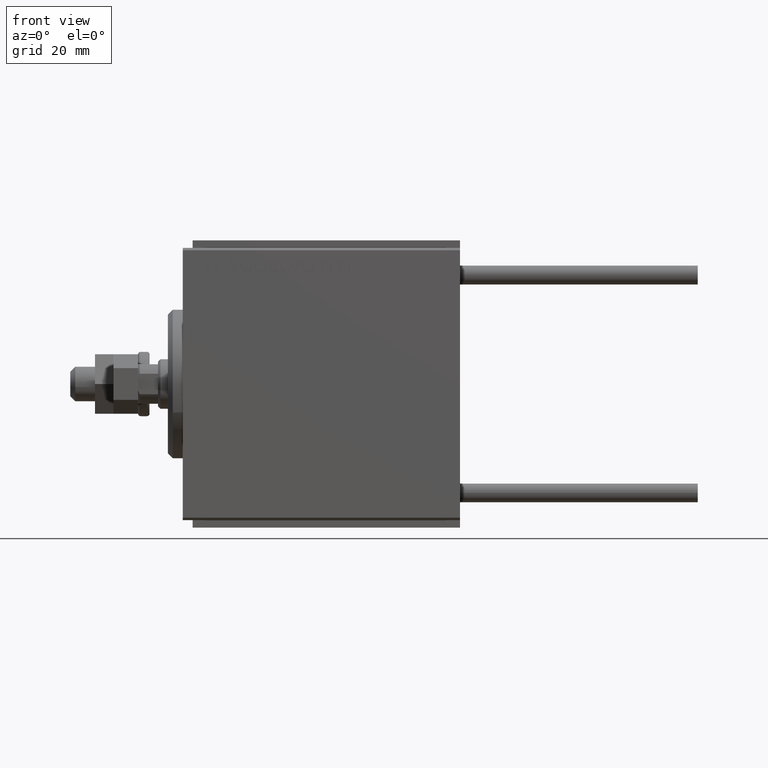
[diagram: clean part render]
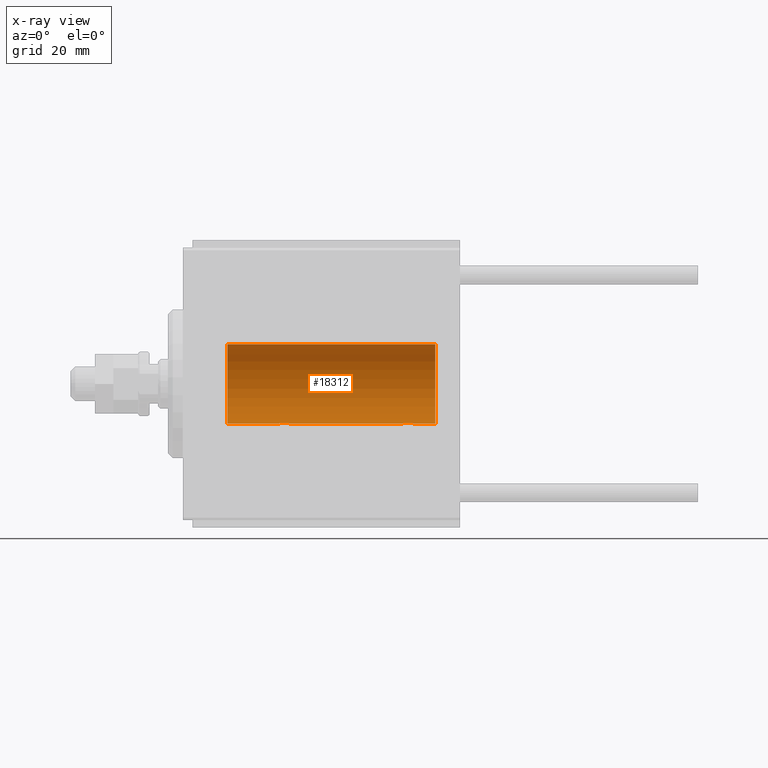
[diagram: x-ray — body ghosted, one internal face saturated and labeled with its STEP entity id]
A machine part, front view, then the same camera in x-ray: the body is ghosted and one INTERNAL B-rep face — a face not visible from any outside direction — is saturated and labeled: STEP entity #18312.
In plain terms, the highlighted cylindrical surface (partial cylindrical patch) has radius 8 mm, axis along (-1, -0, -0).
Its self-contained STEP definition (entity closure, byte-faithful):
#118 = CARTESIAN_POINT ( 'NONE',  ( 46.50031982237067751, 0.7674545364220052290, -7.963965305651049320 ) ) ;
#1081 = CARTESIAN_POINT ( 'NONE',  ( 9.000000000000001776, 9.797174393178823685E-16, -7.999999999999998224 ) ) ;
#1284 = CARTESIAN_POINT ( 'NONE',  ( 21.26739091610630084, 1.000368629246204399, -7.938072339095202601 ) ) ;
#1529 = CARTESIAN_POINT ( 'NONE',  ( 21.50031982237068107, 0.7674545364220053401, -7.963965305651049320 ) ) ;
#1737 = CARTESIAN_POINT ( 'NONE',  ( 51.00000000000000000, 0.000000000000000000, 7.999999999999998224 ) ) ;
#1812 = CARTESIAN_POINT ( 'NONE',  ( 51.00000000000000000, 9.797174393178823685E-16, -7.999999999999998224 ) ) ;
#2281 = CARTESIAN_POINT ( 'NONE',  ( 21.68608944587722576, 0.4029817482954558550, -7.990203133273719338 ) ) ;
#3715 = CARTESIAN_POINT ( 'NONE',  ( 46.74999999999999289, 9.797173987957720246E-16, -7.999999999999998224 ) ) ;
#3963 = CARTESIAN_POINT ( 'NONE',  ( 45.82459038316879685, 1.209888574283866980, -7.907997942808293601 ) ) ;
#4633 = LINE ( 'NONE', #31865, #8980 ) ;
#4885 = CARTESIAN_POINT ( 'NONE',  ( 19.28266791658456825, 0.3277916934117463543, -7.994719249713585718 ) ) ;
#5119 = CARTESIAN_POINT ( 'NONE',  ( 21.70976650520091411, 0.3250523954932730830, -7.993796610540221614 ) ) ;
#5219 = ORIENTED_EDGE ( 'NONE', *, *, #5967, .T. ) ;
#5615 = CARTESIAN_POINT ( 'NONE',  ( 21.74181525892405986, 0.1645871186493928773, -7.998709545350109806 ) ) ;
#5863 = CARTESIAN_POINT ( 'NONE',  ( 20.17150130922778573, 1.217000984963200860, -7.907141142849008375 ) ) ;
#5967 = EDGE_CURVE ( 'NONE', #32391, #36948, #31352, .T. ) ;
#6123 = CARTESIAN_POINT ( 'NONE',  ( 21.75000000000000000, 0.08164616652084619175, -7.999999999999998224 ) ) ;
#6717 = ORIENTED_EDGE ( 'NONE', *, *, #31863, .T. ) ;
#7483 = CARTESIAN_POINT ( 'NONE',  ( 21.75000000000000355, 9.797173987965608855E-16, -7.999999999999998224 ) ) ;
#7792 = CARTESIAN_POINT ( 'NONE',  ( 46.75000000000000000, 0.08164616652084634441, -8.000000000000000000 ) ) ;
#8295 = CARTESIAN_POINT ( 'NONE',  ( 46.59204967621045057, 0.6298709050361936956, -7.976604806854522778 ) ) ;
#8560 = ORIENTED_EDGE ( 'NONE', *, *, #27305, .F. ) ;
#8726 = EDGE_CURVE ( 'NONE', #19715, #44937, #14740, .T. ) ;
#8813 = DIRECTION ( 'NONE',  ( 0.000000000000000000, 0.000000000000000000, 1.000000000000000000 ) ) ;
#8958 = CARTESIAN_POINT ( 'NONE',  ( 19.73146701955095494, 0.9991832710565806686, -7.938201675418735448 ) ) ;
#8980 = VECTOR ( 'NONE', #43348, 1000.000000000000000 ) ;
#9118 = ORIENTED_EDGE ( 'NONE', *, *, #49002, .F. ) ;
#10205 = CARTESIAN_POINT ( 'NONE',  ( 20.66417091690312091, 1.241868426634441747, -7.903038949453011774 ) ) ;
#10466 = CIRCLE ( 'NONE', #20996, 7.999999999999998224 ) ;
#11184 = VERTEX_POINT ( 'NONE', #38275 ) ;
#11321 = CARTESIAN_POINT ( 'NONE',  ( 51.00000000000000000, 9.797174393178823685E-16, -7.999999999999998224 ) ) ;
#11363 = ORIENTED_EDGE ( 'NONE', *, *, #49020, .F. ) ;
#11606 = CARTESIAN_POINT ( 'NONE',  ( 46.12982270639373183, 1.092113850918999818, -7.925358570881163800 ) ) ;
#12363 = CARTESIAN_POINT ( 'NONE',  ( 46.74181525892407052, 0.1645871186493928495, -7.998709545350109806 ) ) ;
#12510 = EDGE_CURVE ( 'NONE', #11184, #13837, #48283, .T. ) ;
#13011 = CARTESIAN_POINT ( 'NONE',  ( 21.75000000000000355, 9.797173987965608855E-16, -7.999999999999998224 ) ) ;
#13510 = CARTESIAN_POINT ( 'NONE',  ( 20.58119849493555620, 1.250030652953401988, -7.901735465557267801 ) ) ;
#13837 = VERTEX_POINT ( 'NONE', #1081 ) ;
#14740 = B_SPLINE_CURVE_WITH_KNOTS ( 'NONE', 3,
 ( #34523, #27135, #31464, #46483, #16191, #35278, #23074, #31201, #35023, #23326, #42675, #3963, #27644, #11606, #31713, #118, #8295, #38600, #46737, #12363, #7792, #3715 ),
 .UNSPECIFIED., .F., .F.,
 ( 4, 2, 2, 2, 2, 2, 2, 2, 2, 2, 4 ),
 ( 7.505074081152076538E-19, 0.0004892585179630999388, 0.0009785170359261990101, 0.001467775553889298082, 0.001957034071852397587, 0.002201663330833957422, 0.002446292589815517258, 0.002935551107778656445, 0.003424809625741795632, 0.003669438884723368911, 0.003914068143704942625 ),
 .UNSPECIFIED. ) ;
#15074 = VECTOR ( 'NONE', #19359, 1000.000000000000000 ) ;
#15329 = CARTESIAN_POINT ( 'NONE',  ( 51.00000000000000000, 0.000000000000000000, 0.000000000000000000 ) ) ;
#16191 = CARTESIAN_POINT ( 'NONE',  ( 44.50115498801908842, 0.7689725568822843860, -7.963798983873343396 ) ) ;
#17262 = DIRECTION ( 'NONE',  ( 0.000000000000000000, 0.000000000000000000, 1.000000000000000000 ) ) ;
#18035 = VERTEX_POINT ( 'NONE', #11321 ) ;
#18312 = ADVANCED_FACE ( 'NONE', ( #34673 ), #38245, .F. ) ;
#18649 = DIRECTION ( 'NONE',  ( -1.000000000000000000, -0.000000000000000000, -0.000000000000000000 ) ) ;
#18849 = DIRECTION ( 'NONE',  ( -1.000000000000000000, -0.000000000000000000, -0.000000000000000000 ) ) ;
#19039 = CARTESIAN_POINT ( 'NONE',  ( 19.25000000000000711, -6.253246997522681077E-15, -7.999999999999998224 ) ) ;
#19359 = DIRECTION ( 'NONE',  ( -1.000000000000000000, -0.000000000000000000, -0.000000000000000000 ) ) ;
#19715 = VERTEX_POINT ( 'NONE', #25403 ) ;
#20618 = EDGE_LOOP ( 'NONE', ( #11363, #8560, #6717, #27953, #9118, #5219, #21463, #46830 ) ) ;
#20996 = AXIS2_PLACEMENT_3D ( 'NONE', #32530, #36853, #17262 ) ;
#21463 = ORIENTED_EDGE ( 'NONE', *, *, #44545, .F. ) ;
#21479 = AXIS2_PLACEMENT_3D ( 'NONE', #40110, #27662, #8813 ) ;
#22923 = CARTESIAN_POINT ( 'NONE',  ( 51.00000000000000000, 9.797174393178823685E-16, -7.999999999999998224 ) ) ;
#23074 = CARTESIAN_POINT ( 'NONE',  ( 44.87074834296262082, 1.092266057037466265, -7.925334523600929160 ) ) ;
#23326 = CARTESIAN_POINT ( 'NONE',  ( 45.58119849493557751, 1.250030652953401322, -7.901735465557271354 ) ) ;
#23850 = VECTOR ( 'NONE', #45119, 1000.000000000000000 ) ;
#25403 = CARTESIAN_POINT ( 'NONE',  ( 44.25000000000000711, -6.574401834785964054E-15, -7.999999999999998224 ) ) ;
#27135 = CARTESIAN_POINT ( 'NONE',  ( 44.25000000000001421, 0.1654536524217962712, -8.000000000000000000 ) ) ;
#27305 = EDGE_CURVE ( 'NONE', #43147, #18035, #10466, .T. ) ;
#27644 = CARTESIAN_POINT ( 'NONE',  ( 45.90257413385905494, 1.186236229830389455, -7.911627449023362679 ) ) ;
#27662 = DIRECTION ( 'NONE',  ( -1.000000000000000000, 0.000000000000000000, 0.000000000000000000 ) ) ;
#27953 = ORIENTED_EDGE ( 'NONE', *, *, #12510, .T. ) ;
#28061 = CARTESIAN_POINT ( 'NONE',  ( 19.25000000000000711, -6.253246997522681077E-15, -7.999999999999998224 ) ) ;
#29790 = LINE ( 'NONE', #22923, #39475 ) ;
#31201 = CARTESIAN_POINT ( 'NONE',  ( 45.17150130922779283, 1.217000984963200416, -7.907141142849010151 ) ) ;
#31352 = B_SPLINE_CURVE_WITH_KNOTS ( 'NONE', 3,
 ( #28061, #39778, #4885, #32123, #43845, #8958, #40265, #5863, #48628, #13510, #10205, #33354, #36925, #41018, #1284, #1529, #32860, #2281, #5119, #5615, #6123, #13011 ),
 .UNSPECIFIED., .F., .F.,
 ( 4, 2, 2, 2, 2, 2, 2, 2, 2, 2, 4 ),
 ( 4.384776375612755932E-19, 0.0004892585179631271522, 0.0009785170359262538708, 0.001467775553889380698, 0.001957034071852507308, 0.002201663330834065842, 0.002446292589815623510, 0.002935551107778730170, 0.003424809625741835964, 0.003669438884723391463, 0.003914068143704946962 ),
 .UNSPECIFIED. ) ;
#31464 = CARTESIAN_POINT ( 'NONE',  ( 44.28266791658455759, 0.3277916934117462988, -7.994719249713585718 ) ) ;
#31713 = CARTESIAN_POINT ( 'NONE',  ( 46.26739091610629373, 1.000368629246204399, -7.938072339095200824 ) ) ;
#31863 = EDGE_CURVE ( 'NONE', #43147, #11184, #4633, .T. ) ;
#31865 = CARTESIAN_POINT ( 'NONE',  ( 51.00000000000000000, 0.000000000000000000, 7.999999999999998224 ) ) ;
#32123 = CARTESIAN_POINT ( 'NONE',  ( 19.40826977845302537, 0.6304521543648575754, -7.976560245937306171 ) ) ;
#32391 = VERTEX_POINT ( 'NONE', #19039 ) ;
#32530 = CARTESIAN_POINT ( 'NONE',  ( 51.00000000000000000, 0.000000000000000000, 0.000000000000000000 ) ) ;
#32860 = CARTESIAN_POINT ( 'NONE',  ( 21.59204967621043991, 0.6298709050361920303, -7.976604806854521001 ) ) ;
#33354 = CARTESIAN_POINT ( 'NONE',  ( 20.82459038316880395, 1.209888574283866758, -7.907997942808293601 ) ) ;
#34523 = CARTESIAN_POINT ( 'NONE',  ( 44.25000000000000711, -6.574401834785964054E-15, -7.999999999999998224 ) ) ;
#34673 = FACE_OUTER_BOUND ( 'NONE', #20618, .T. ) ;
#35023 = CARTESIAN_POINT ( 'NONE',  ( 45.33619145091235225, 1.249938428426572656, -7.901750054830718462 ) ) ;
#35278 = CARTESIAN_POINT ( 'NONE',  ( 44.73146701955094784, 0.9991832710565826670, -7.938201675418733672 ) ) ;
#36853 = DIRECTION ( 'NONE',  ( -1.000000000000000000, 0.000000000000000000, 0.000000000000000000 ) ) ;
#36925 = CARTESIAN_POINT ( 'NONE',  ( 20.90257413385907270, 1.186236229830388345, -7.911627449023368008 ) ) ;
#36948 = VERTEX_POINT ( 'NONE', #7483 ) ;
#38245 = CYLINDRICAL_SURFACE ( 'NONE', #47686, 7.999999999999998224 ) ;
#38275 = CARTESIAN_POINT ( 'NONE',  ( 9.000000000000001776, 0.000000000000000000, 7.999999999999998224 ) ) ;
#38600 = CARTESIAN_POINT ( 'NONE',  ( 46.68608944587722220, 0.4029817482954573538, -7.990203133273721114 ) ) ;
#39475 = VECTOR ( 'NONE', #18849, 1000.000000000000000 ) ;
#39778 = CARTESIAN_POINT ( 'NONE',  ( 19.25000000000000711, 0.1654536524217966875, -8.000000000000000000 ) ) ;
#40110 = CARTESIAN_POINT ( 'NONE',  ( 9.000000000000001776, 0.000000000000000000, 0.000000000000000000 ) ) ;
#40265 = CARTESIAN_POINT ( 'NONE',  ( 19.87074834296262438, 1.092266057037466487, -7.925334523600932712 ) ) ;
#41018 = CARTESIAN_POINT ( 'NONE',  ( 21.12982270639374605, 1.092113850918997153, -7.925358570881165576 ) ) ;
#42675 = CARTESIAN_POINT ( 'NONE',  ( 45.66417091690310315, 1.241868426634441969, -7.903038949453011774 ) ) ;
#43147 = VERTEX_POINT ( 'NONE', #1737 ) ;
#43348 = DIRECTION ( 'NONE',  ( -1.000000000000000000, -0.000000000000000000, -0.000000000000000000 ) ) ;
#43845 = CARTESIAN_POINT ( 'NONE',  ( 19.50115498801909197, 0.7689725568822818325, -7.963798983873345172 ) ) ;
#44545 = EDGE_CURVE ( 'NONE', #19715, #36948, #44613, .T. ) ;
#44613 = LINE ( 'NONE', #1812, #23850 ) ;
#44937 = VERTEX_POINT ( 'NONE', #45311 ) ;
#45119 = DIRECTION ( 'NONE',  ( -1.000000000000000000, -0.000000000000000000, -0.000000000000000000 ) ) ;
#45311 = CARTESIAN_POINT ( 'NONE',  ( 46.74999999999999289, 9.797173987957720246E-16, -7.999999999999998224 ) ) ;
#46483 = CARTESIAN_POINT ( 'NONE',  ( 44.40826977845300405, 0.6304521543648577975, -7.976560245937304394 ) ) ;
#46737 = CARTESIAN_POINT ( 'NONE',  ( 46.70976650520091766, 0.3250523954932729165, -7.993796610540221614 ) ) ;
#46830 = ORIENTED_EDGE ( 'NONE', *, *, #8726, .T. ) ;
#46891 = DIRECTION ( 'NONE',  ( 0.000000000000000000, 0.000000000000000000, 1.000000000000000000 ) ) ;
#47686 = AXIS2_PLACEMENT_3D ( 'NONE', #15329, #18649, #46891 ) ;
#48283 = CIRCLE ( 'NONE', #21479, 7.999999999999998224 ) ;
#48628 = CARTESIAN_POINT ( 'NONE',  ( 20.33619145091235936, 1.249938428426572656, -7.901750054830717573 ) ) ;
#49002 = EDGE_CURVE ( 'NONE', #32391, #13837, #29790, .T. ) ;
#49020 = EDGE_CURVE ( 'NONE', #18035, #44937, #49647, .T. ) ;
#49647 = LINE ( 'NONE', #49902, #15074 ) ;
#49902 = CARTESIAN_POINT ( 'NONE',  ( 51.00000000000000000, 9.797174393178823685E-16, -7.999999999999998224 ) ) ;